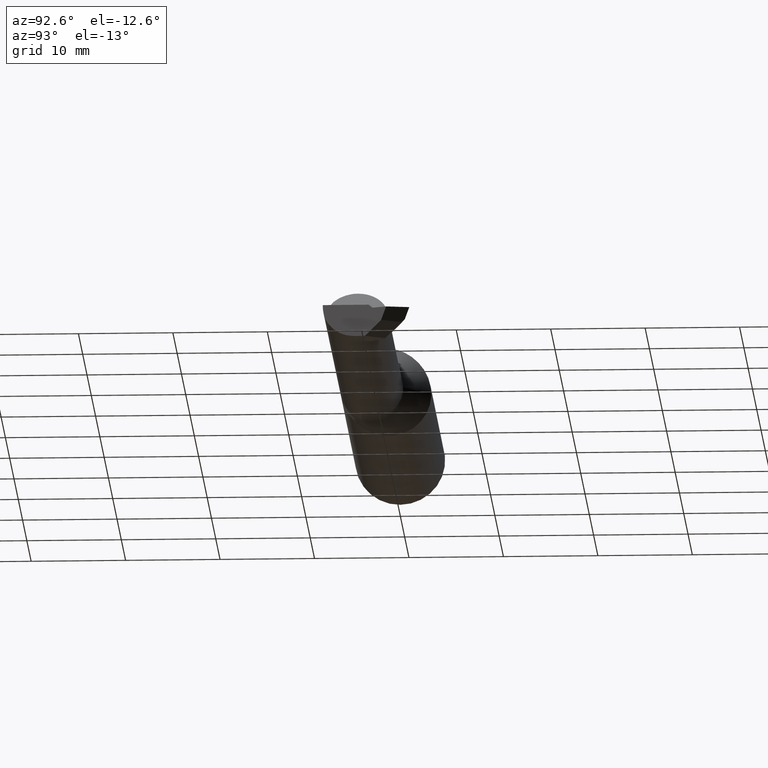
[diagram: clean part render]
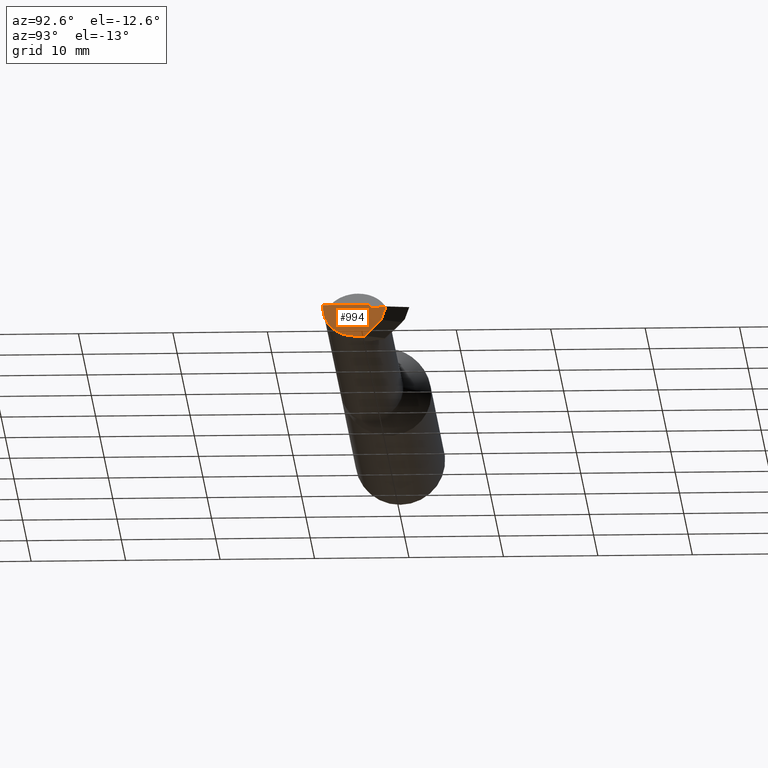
[diagram: same view with one face highlighted and labeled with its STEP entity id]
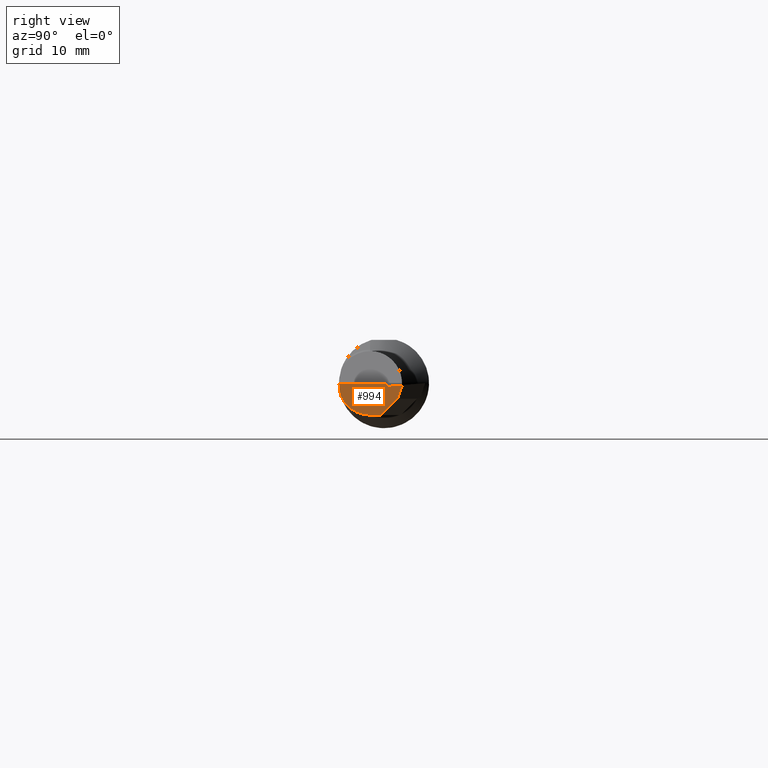
[diagram: same view with one face highlighted and labeled with its STEP entity id]
A machine part, auxiliary view. The second image highlights one B-rep face of the part: STEP entity #994.
A second angle (right view) of the same face is appended — the face is thin or edge-on in the first view.
In plain terms, the highlighted planar face has unit normal (1, 0, 0).
Its self-contained STEP definition (entity closure, byte-faithful):
#35 = B_SPLINE_CURVE_WITH_KNOTS ( 'NONE', 3,
 ( #277, #1014, #921, #195 ),
 .UNSPECIFIED., .F., .F.,
 ( 4, 4 ),
 ( 0.01149411510696859810, 0.01197339233655102600 ),
 .UNSPECIFIED. ) ;
#53 = VERTEX_POINT ( 'NONE', #934 ) ;
#66 = CARTESIAN_POINT ( 'NONE',  ( 3.000000000000000444, 0.000000000000000000, 0.000000000000000000 ) ) ;
#124 = CARTESIAN_POINT ( 'NONE',  ( 3.000000000000000444, -0.01174773888580783916, -0.1330000000000000349 ) ) ;
#143 = CARTESIAN_POINT ( 'NONE',  ( 3.000000000000000444, 0.2999999999999999889, -6.429183357567480113E-17 ) ) ;
#154 = VERTEX_POINT ( 'NONE', #296 ) ;
#160 = CARTESIAN_POINT ( 'NONE',  ( 3.000000000000000444, 0.003904800381628308319, -6.429183357567480113E-17 ) ) ;
#173 = VERTEX_POINT ( 'NONE', #160 ) ;
#192 = DIRECTION ( 'NONE',  ( 0.000000000000000000, 0.000000000000000000, 1.000000000000000000 ) ) ;
#195 = CARTESIAN_POINT ( 'NONE',  ( 3.000000000000000444, 0.003904800381628308319, -6.429183357567480113E-17 ) ) ;
#201 = CARTESIAN_POINT ( 'NONE',  ( 3.000000000000000444, -0.1873499999999998222, -6.429183357567480113E-17 ) ) ;
#206 = CARTESIAN_POINT ( 'NONE',  ( 3.000000000000000444, -0.05834999999999983950, -0.1329999999999999793 ) ) ;
#210 = EDGE_CURVE ( 'NONE', #154, #173, #35, .T. ) ;
#224 = EDGE_CURVE ( 'NONE', #943, #154, #915, .T. ) ;
#253 = CARTESIAN_POINT ( 'NONE',  ( 3.000000000000000444, -0.05834999999999981868, 0.000000000000000000 ) ) ;
#270 = ORIENTED_EDGE ( 'NONE', *, *, #946, .F. ) ;
#277 = CARTESIAN_POINT ( 'NONE',  ( 3.000000000000000444, 0.01716100861735784730, -0.01342844885236288421 ) ) ;
#289 = VECTOR ( 'NONE', #770, 39.37007874015748143 ) ;
#296 = CARTESIAN_POINT ( 'NONE',  ( 3.000000000000000444, 0.01716100861735784730, -0.01342844885236288421 ) ) ;
#318 = CARTESIAN_POINT ( 'NONE',  ( 3.000000000000000444, 0.1319508336464760567, -0.1329999999999999793 ) ) ;
#321 = DIRECTION ( 'NONE',  ( -0.000000000000000000, 1.000000000000000000, -0.000000000000000000 ) ) ;
#343 = AXIS2_PLACEMENT_3D ( 'NONE', #253, #541, #192 ) ;
#350 = DIRECTION ( 'NONE',  ( 0.000000000000000000, -0.7071067811865512365, -0.7071067811865436870 ) ) ;
#405 = VECTOR ( 'NONE', #1176, 39.37007874015748854 ) ;
#410 = VERTEX_POINT ( 'NONE', #206 ) ;
#420 = ORIENTED_EDGE ( 'NONE', *, *, #537, .T. ) ;
#459 = VERTEX_POINT ( 'NONE', #201 ) ;
#482 = EDGE_CURVE ( 'NONE', #459, #173, #1073, .T. ) ;
#504 = EDGE_LOOP ( 'NONE', ( #420, #664, #270, #1042, #546, #895, #754, #526 ) ) ;
#516 = DIRECTION ( 'NONE',  ( 1.000000000000000000, 0.000000000000000000, 0.000000000000000000 ) ) ;
#521 = CIRCLE ( 'NONE', #979, 0.1873499999999999888 ) ;
#526 = ORIENTED_EDGE ( 'NONE', *, *, #987, .T. ) ;
#537 = EDGE_CURVE ( 'NONE', #410, #559, #1138, .T. ) ;
#541 = DIRECTION ( 'NONE',  ( 1.000000000000000000, -0.000000000000000000, -0.000000000000000000 ) ) ;
#546 = ORIENTED_EDGE ( 'NONE', *, *, #210, .T. ) ;
#555 = CARTESIAN_POINT ( 'NONE',  ( 3.000000000000000444, 0.07668453679770259601, -0.008220814923516589490 ) ) ;
#559 = VERTEX_POINT ( 'NONE', #124 ) ;
#571 = EDGE_CURVE ( 'NONE', #459, #53, #521, .T. ) ;
#599 = VERTEX_POINT ( 'NONE', #873 ) ;
#635 = VECTOR ( 'NONE', #992, 39.37007874015748143 ) ;
#664 = ORIENTED_EDGE ( 'NONE', *, *, #910, .F. ) ;
#719 = FACE_OUTER_BOUND ( 'NONE', #504, .T. ) ;
#730 = CARTESIAN_POINT ( 'NONE',  ( 3.000000000000000444, 0.8177874749940133858, 0.6965352138798123205 ) ) ;
#737 = DIRECTION ( 'NONE',  ( 1.000000000000000000, 0.000000000000000000, 0.000000000000000000 ) ) ;
#754 = ORIENTED_EDGE ( 'NONE', *, *, #571, .T. ) ;
#770 = DIRECTION ( 'NONE',  ( -0.000000000000000000, 1.000000000000000000, -8.972136187338153631E-17 ) ) ;
#775 = DIRECTION ( 'NONE',  ( 0.000000000000000000, 0.000000000000000000, -1.000000000000000000 ) ) ;
#788 = AXIS2_PLACEMENT_3D ( 'NONE', #66, #737, #801 ) ;
#801 = DIRECTION ( 'NONE',  ( 0.000000000000000000, 0.000000000000000000, -1.000000000000000000 ) ) ;
#831 = VECTOR ( 'NONE', #350, 39.37007874015748854 ) ;
#867 = CIRCLE ( 'NONE', #343, 0.1329999999999999793 ) ;
#873 = CARTESIAN_POINT ( 'NONE',  ( 3.000000000000000444, 0.05625226111419304870, -0.06499999999999991895 ) ) ;
#877 = CARTESIAN_POINT ( 'NONE',  ( 3.000000000000000444, 0.000000000000000000, 0.000000000000000000 ) ) ;
#895 = ORIENTED_EDGE ( 'NONE', *, *, #482, .F. ) ;
#910 = EDGE_CURVE ( 'NONE', #599, #559, #1186, .T. ) ;
#915 = LINE ( 'NONE', #1099, #635 ) ;
#921 = CARTESIAN_POINT ( 'NONE',  ( 3.000000000000000444, 0.008323043039670309159, -0.004476640089028350276 ) ) ;
#934 = CARTESIAN_POINT ( 'NONE',  ( 3.000000000000000444, -0.1783697086546704169, -0.05730854678359924986 ) ) ;
#943 = VERTEX_POINT ( 'NONE', #555 ) ;
#946 = EDGE_CURVE ( 'NONE', #943, #599, #1107, .T. ) ;
#979 = AXIS2_PLACEMENT_3D ( 'NONE', #877, #516, #775 ) ;
#987 = EDGE_CURVE ( 'NONE', #53, #410, #867, .T. ) ;
#992 = DIRECTION ( 'NONE',  ( 0.000000000000000000, -0.9961946980917453232, -0.08715574274766091367 ) ) ;
#994 = ADVANCED_FACE ( 'NONE', ( #719 ), #1018, .T. ) ;
#1014 = CARTESIAN_POINT ( 'NONE',  ( 3.000000000000000444, 0.01274177409504417650, -0.008952794699663712413 ) ) ;
#1018 = PLANE ( 'NONE',  #788 ) ;
#1042 = ORIENTED_EDGE ( 'NONE', *, *, #224, .T. ) ;
#1046 = VECTOR ( 'NONE', #321, 39.37007874015748143 ) ;
#1073 = LINE ( 'NONE', #143, #1046 ) ;
#1099 = CARTESIAN_POINT ( 'NONE',  ( 3.000000000000000444, 0.001296269976790497946, -0.01481643363321415684 ) ) ;
#1107 = LINE ( 'NONE', #1191, #405 ) ;
#1138 = LINE ( 'NONE', #318, #289 ) ;
#1176 = DIRECTION ( 'NONE',  ( 0.000000000000000000, -0.3385987137067855701, -0.9409308747597298073 ) ) ;
#1186 = LINE ( 'NONE', #730, #831 ) ;
#1191 = CARTESIAN_POINT ( 'NONE',  ( 3.000000000000000444, 0.07051185957978386987, -0.02537404775976230195 ) ) ;